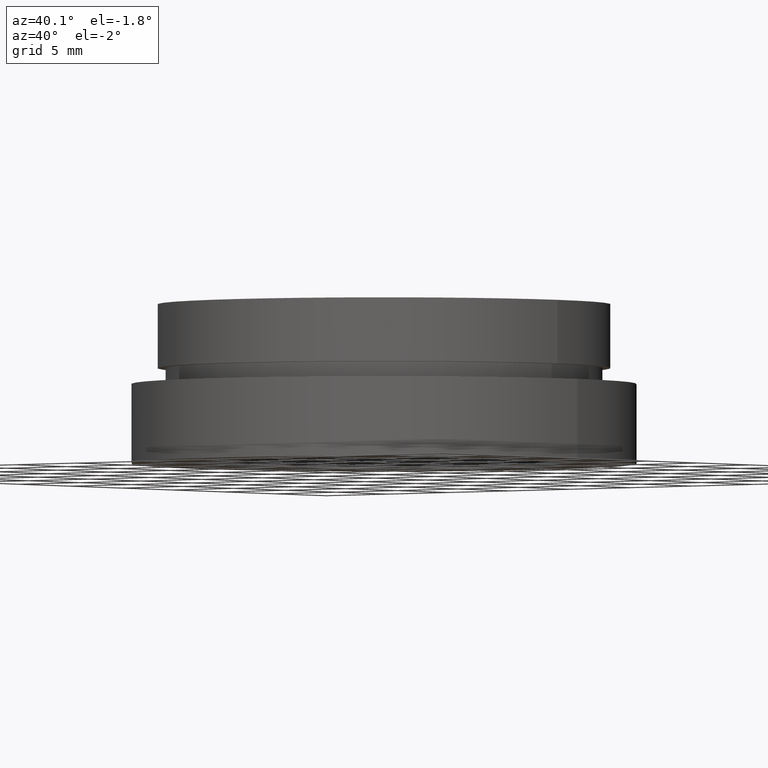
[diagram: clean part render]
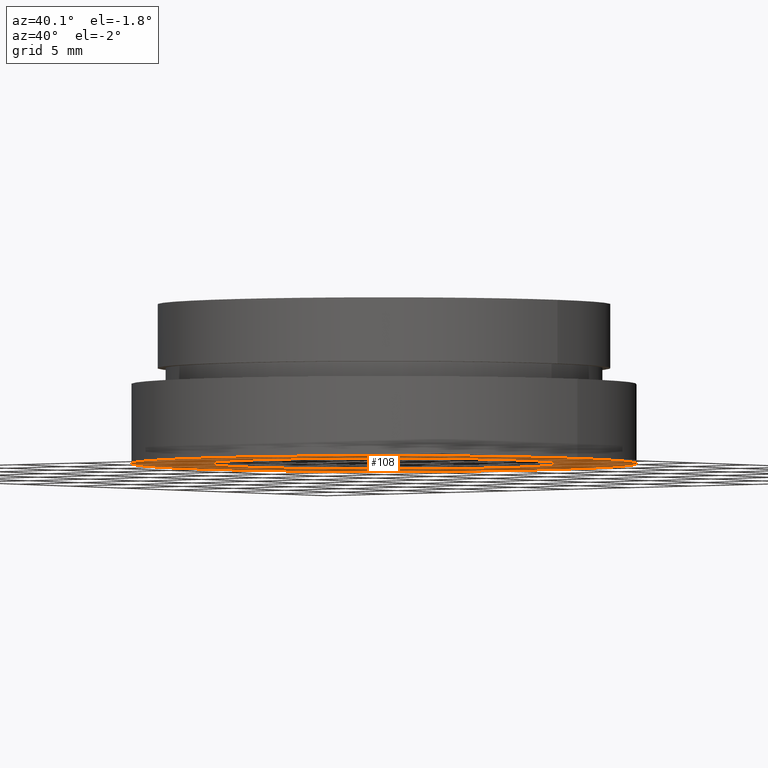
[diagram: same view with one face highlighted and labeled with its STEP entity id]
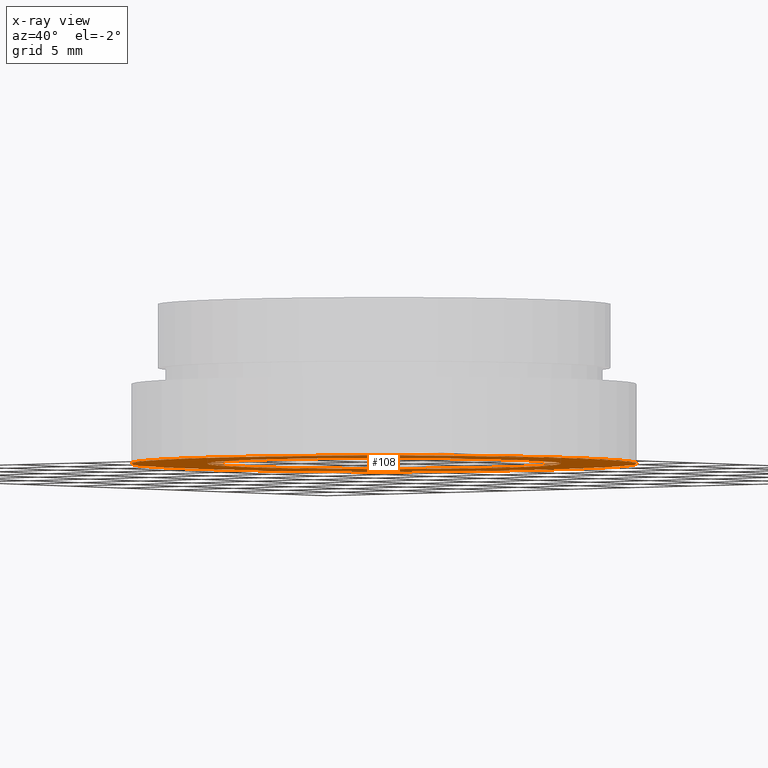
[diagram: x-ray of the same camera — body ghosted, the highlighted face saturated]
A machine part, auxiliary view. The second image highlights one B-rep face of the part: STEP entity #108.
The next image is the same camera in x-ray: the body ghosted, the highlighted face saturated — about 0% of this face is hidden behind the body in this view.
In plain terms, the highlighted planar face has unit normal (0, 0, 1).
Its self-contained STEP definition (entity closure, byte-faithful):
#34 = ORIENTED_EDGE ( 'NONE', *, *, #62, .F. ) ;
#35 = DIRECTION ( 'NONE',  ( -0.0000000000000000000, -0.0000000000000000000, -1.000000000000000000 ) ) ;
#44 = ORIENTED_EDGE ( 'NONE', *, *, #92, .T. ) ;
#50 = VERTEX_POINT ( 'NONE', #352 ) ;
#57 = DIRECTION ( 'NONE',  ( 0.0000000000000000000, 0.0000000000000000000, 1.000000000000000000 ) ) ;
#62 = EDGE_CURVE ( 'NONE', #392, #148, #163, .T. ) ;
#64 = CARTESIAN_POINT ( 'NONE',  ( 11.10000000000000100, 1.359357947053562400E-015, -10.00000000000000000 ) ) ;
#71 = PLANE ( 'NONE',  #251 ) ;
#77 = FACE_OUTER_BOUND ( 'NONE', #241, .T. ) ;
#90 = CARTESIAN_POINT ( 'NONE',  ( 0.0000000000000000000, 0.0000000000000000000, -10.00000000000000000 ) ) ;
#92 = EDGE_CURVE ( 'NONE', #50, #286, #398, .T. ) ;
#100 = FACE_BOUND ( 'NONE', #219, .T. ) ;
#102 = DIRECTION ( 'NONE',  ( -0.0000000000000000000, -0.0000000000000000000, -1.000000000000000000 ) ) ;
#108 = ADVANCED_FACE ( 'NONE', ( #100, #77 ), #71, .F. ) ;
#120 = DIRECTION ( 'NONE',  ( -0.0000000000000000000, -0.0000000000000000000, -1.000000000000000000 ) ) ;
#130 = CIRCLE ( 'NONE', #149, 11.10000000000000100 ) ;
#135 = CARTESIAN_POINT ( 'NONE',  ( -11.10000000000000100, 0.0000000000000000000, -10.00000000000000000 ) ) ;
#148 = VERTEX_POINT ( 'NONE', #135 ) ;
#149 = AXIS2_PLACEMENT_3D ( 'NONE', #395, #401, #402 ) ;
#158 = CIRCLE ( 'NONE', #409, 15.87500000000000000 ) ;
#163 = CIRCLE ( 'NONE', #350, 11.10000000000000100 ) ;
#205 = ORIENTED_EDGE ( 'NONE', *, *, #306, .F. ) ;
#213 = CARTESIAN_POINT ( 'NONE',  ( -15.87500000000000000, 0.0000000000000000000, -10.00000000000000000 ) ) ;
#219 = EDGE_LOOP ( 'NONE', ( #205, #34 ) ) ;
#223 = CARTESIAN_POINT ( 'NONE',  ( 0.0000000000000000000, 0.0000000000000000000, -10.00000000000000000 ) ) ;
#230 = CARTESIAN_POINT ( 'NONE',  ( 0.0000000000000000000, 0.0000000000000000000, -10.00000000000000000 ) ) ;
#241 = EDGE_LOOP ( 'NONE', ( #310, #44 ) ) ;
#251 = AXIS2_PLACEMENT_3D ( 'NONE', #277, #57, #361 ) ;
#254 = DIRECTION ( 'NONE',  ( -1.000000000000000000, 0.0000000000000000000, 0.0000000000000000000 ) ) ;
#273 = DIRECTION ( 'NONE',  ( -1.000000000000000000, 0.0000000000000000000, 0.0000000000000000000 ) ) ;
#277 = CARTESIAN_POINT ( 'NONE',  ( 15.87500000000000000, 0.0000000000000000000, -10.00000000000000000 ) ) ;
#286 = VERTEX_POINT ( 'NONE', #213 ) ;
#306 = EDGE_CURVE ( 'NONE', #148, #392, #130, .T. ) ;
#310 = ORIENTED_EDGE ( 'NONE', *, *, #322, .T. ) ;
#315 = DIRECTION ( 'NONE',  ( -1.000000000000000000, 0.0000000000000000000, 0.0000000000000000000 ) ) ;
#322 = EDGE_CURVE ( 'NONE', #286, #50, #158, .T. ) ;
#350 = AXIS2_PLACEMENT_3D ( 'NONE', #230, #102, #315 ) ;
#352 = CARTESIAN_POINT ( 'NONE',  ( 15.87500000000000000, 1.944126793646423200E-015, -10.00000000000000000 ) ) ;
#361 = DIRECTION ( 'NONE',  ( 1.000000000000000000, 0.0000000000000000000, -0.0000000000000000000 ) ) ;
#392 = VERTEX_POINT ( 'NONE', #64 ) ;
#395 = CARTESIAN_POINT ( 'NONE',  ( 0.0000000000000000000, 0.0000000000000000000, -10.00000000000000000 ) ) ;
#398 = CIRCLE ( 'NONE', #431, 15.87500000000000000 ) ;
#401 = DIRECTION ( 'NONE',  ( -0.0000000000000000000, -0.0000000000000000000, -1.000000000000000000 ) ) ;
#402 = DIRECTION ( 'NONE',  ( -1.000000000000000000, 0.0000000000000000000, 0.0000000000000000000 ) ) ;
#409 = AXIS2_PLACEMENT_3D ( 'NONE', #223, #35, #273 ) ;
#431 = AXIS2_PLACEMENT_3D ( 'NONE', #90, #120, #254 ) ;